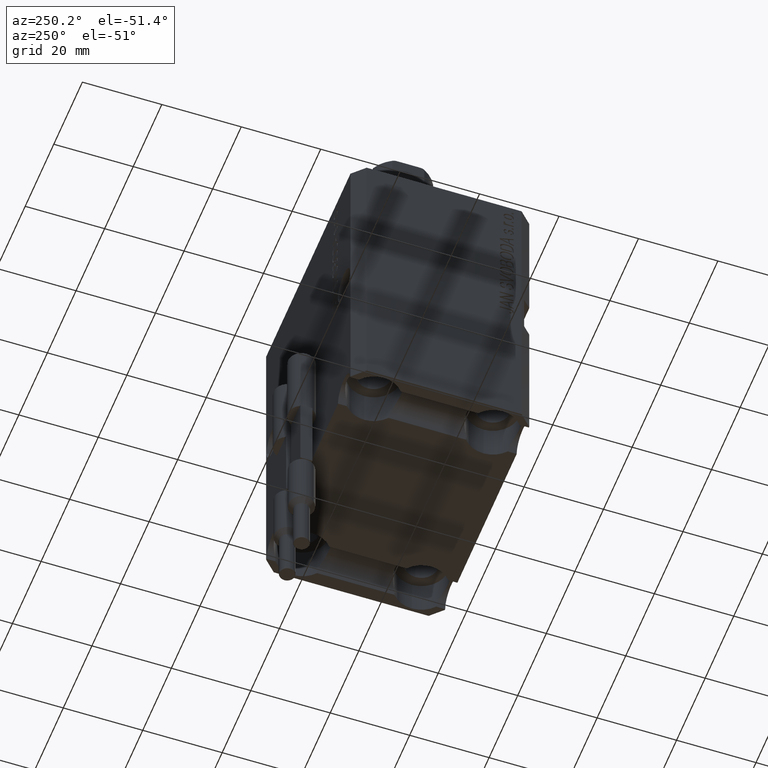
[diagram: clean part render]
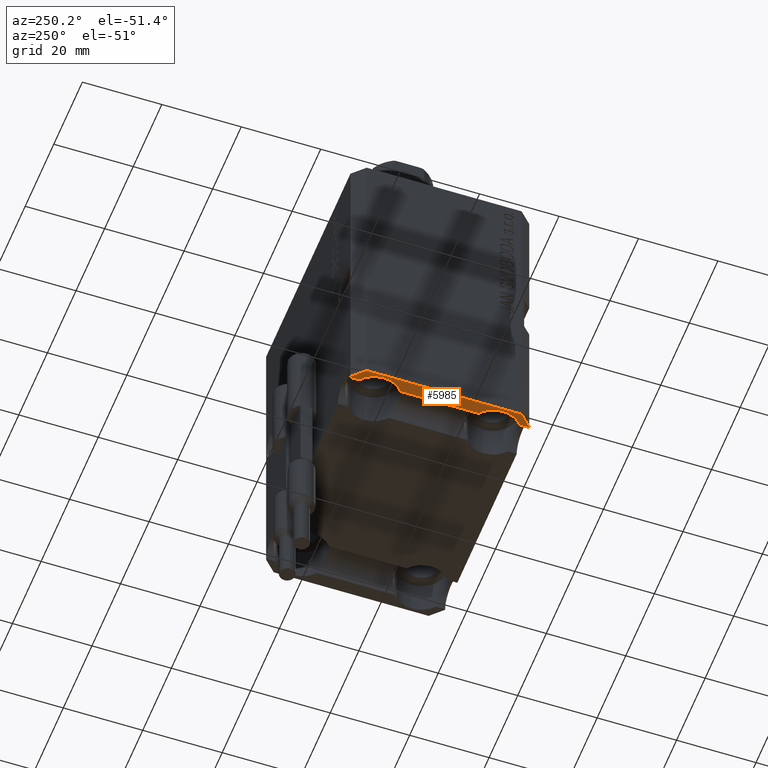
[diagram: same view with one face highlighted and labeled with its STEP entity id]
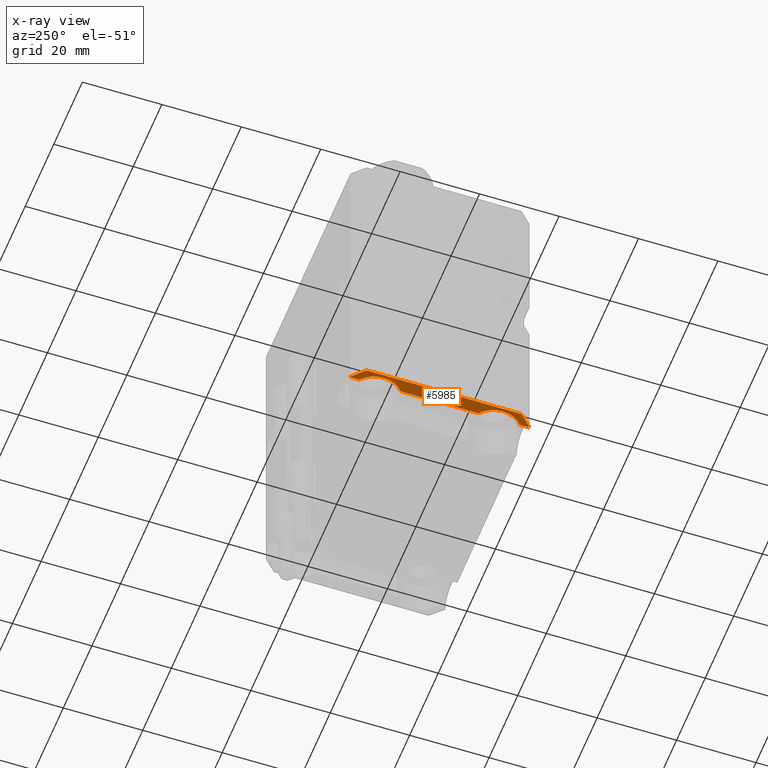
[diagram: x-ray of the same camera — body ghosted, the highlighted face saturated]
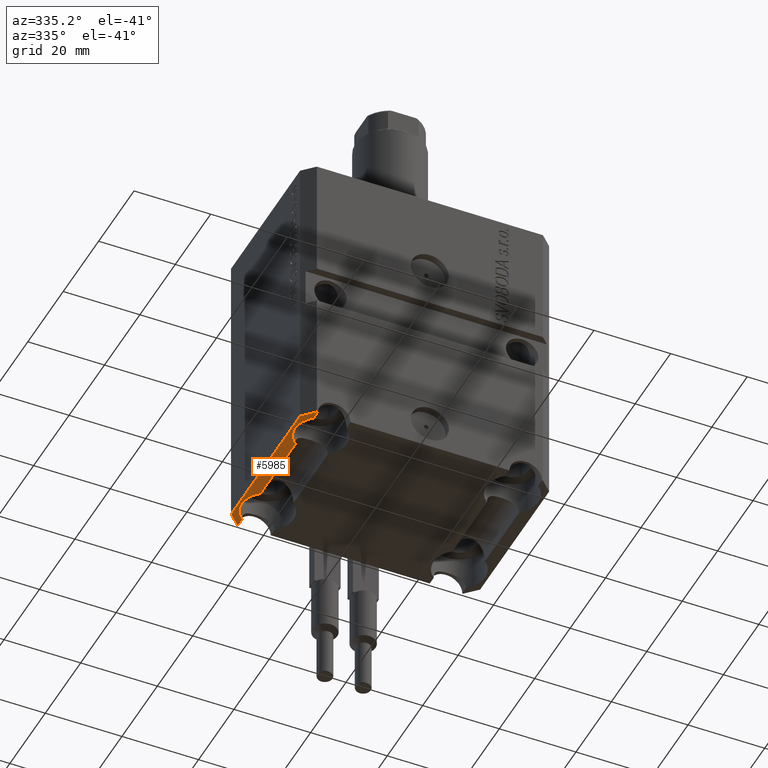
[diagram: same view with one face highlighted and labeled with its STEP entity id]
A machine part, auxiliary view. The second image highlights one B-rep face of the part: STEP entity #5985.
The next image is the same camera in x-ray: the body ghosted, the highlighted face saturated — about 0% of this face is hidden behind the body in this view.
A second angle (auxiliary view) of the same face is appended — the face is thin or edge-on in the first view.
In plain terms, the highlighted planar face has unit normal (0, 0, 1).
Its self-contained STEP definition (entity closure, byte-faithful):
#301 = CARTESIAN_POINT ( 'NONE',  ( -25.00000000000000355, -15.00000000000000000, -77.00000000000000000 ) ) ;
#1954 = ORIENTED_EDGE ( 'NONE', *, *, #21787, .T. ) ;
#2713 = VERTEX_POINT ( 'NONE', #23365 ) ;
#2900 = LINE ( 'NONE', #34544, #28093 ) ;
#3729 = DIRECTION ( 'NONE',  ( 1.000000000000000000, 0.000000000000000000, 0.000000000000000000 ) ) ;
#3853 = ORIENTED_EDGE ( 'NONE', *, *, #13255, .F. ) ;
#4079 = VECTOR ( 'NONE', #20288, 1000.000000000000000 ) ;
#4515 = VERTEX_POINT ( 'NONE', #29091 ) ;
#5629 = CIRCLE ( 'NONE', #31280, 6.750000000041541881 ) ;
#5823 = EDGE_CURVE ( 'NONE', #30228, #37947, #33822, .T. ) ;
#5873 = EDGE_CURVE ( 'NONE', #30228, #23498, #37714, .T. ) ;
#5985 = ADVANCED_FACE ( 'NONE', ( #28977 ), #21213, .F. ) ;
#6753 = CARTESIAN_POINT ( 'NONE',  ( 29.49999999999707967, 22.49999999999951328, -77.00000000000000000 ) ) ;
#6986 = DIRECTION ( 'NONE',  ( 1.000000000000000000, 0.000000000000000000, -0.000000000000000000 ) ) ;
#7473 = CARTESIAN_POINT ( 'NONE',  ( -29.24999999997660183, 20.24404424089872734, -77.00000000000000000 ) ) ;
#7662 = VERTEX_POINT ( 'NONE', #11352 ) ;
#8734 = LINE ( 'NONE', #26603, #18153 ) ;
#8962 = ORIENTED_EDGE ( 'NONE', *, *, #15445, .T. ) ;
#9704 = CARTESIAN_POINT ( 'NONE',  ( -32.49999999999650413, -19.49999999999949907, -77.00000000000000000 ) ) ;
#11352 = CARTESIAN_POINT ( 'NONE',  ( -29.24999999997659472, -20.24404424092320554, -77.00000000000000000 ) ) ;
#11401 = VERTEX_POINT ( 'NONE', #31441 ) ;
#12690 = CARTESIAN_POINT ( 'NONE',  ( -32.49999999999650413, 19.49999999999949907, -77.00000000000000000 ) ) ;
#12797 = VERTEX_POINT ( 'NONE', #31901 ) ;
#13255 = EDGE_CURVE ( 'NONE', #4515, #45220, #20274, .T. ) ;
#13607 = CARTESIAN_POINT ( 'NONE',  ( -29.24999999997659472, -9.755955759076794465, -77.00000000000000000 ) ) ;
#13705 = ORIENTED_EDGE ( 'NONE', *, *, #25559, .T. ) ;
#13820 = DIRECTION ( 'NONE',  ( -0.000000000000000000, -0.000000000000000000, 1.000000000000000000 ) ) ;
#14142 = DIRECTION ( 'NONE',  ( -0.000000000000000000, -0.000000000000000000, 1.000000000000000000 ) ) ;
#14277 = EDGE_CURVE ( 'NONE', #2713, #7662, #5629, .T. ) ;
#14281 = LINE ( 'NONE', #20945, #37190 ) ;
#14487 = AXIS2_PLACEMENT_3D ( 'NONE', #28806, #14142, #38909 ) ;
#14830 = DIRECTION ( 'NONE',  ( 1.176083712526788478E-16, -1.000000000000000000, -0.000000000000000000 ) ) ;
#15445 = EDGE_CURVE ( 'NONE', #7662, #12797, #2900, .T. ) ;
#15503 = LINE ( 'NONE', #25593, #23338 ) ;
#15898 = CARTESIAN_POINT ( 'NONE',  ( -25.00000000000000355, 15.00000000000000000, -77.00000000000000000 ) ) ;
#16721 = EDGE_CURVE ( 'NONE', #23498, #32721, #29575, .T. ) ;
#16848 = CARTESIAN_POINT ( 'NONE',  ( -29.24999999997659827, 22.49999999999952038, -77.00000000000000000 ) ) ;
#18153 = VECTOR ( 'NONE', #26833, 1000.000000000000114 ) ;
#18581 = ORIENTED_EDGE ( 'NONE', *, *, #30518, .F. ) ;
#19172 = ORIENTED_EDGE ( 'NONE', *, *, #14277, .T. ) ;
#19821 = LINE ( 'NONE', #12690, #42192 ) ;
#20206 = CIRCLE ( 'NONE', #34845, 6.750000000041541881 ) ;
#20274 = LINE ( 'NONE', #9704, #32005 ) ;
#20288 = DIRECTION ( 'NONE',  ( 1.176083712526788478E-16, -1.000000000000000000, -0.000000000000000000 ) ) ;
#20945 = CARTESIAN_POINT ( 'NONE',  ( -29.49999999999650413, -22.49999999999949907, -77.00000000000000000 ) ) ;
#21213 = PLANE ( 'NONE',  #42133 ) ;
#21653 = DIRECTION ( 'NONE',  ( 0.000000000000000000, 0.000000000000000000, 1.000000000000000000 ) ) ;
#21787 = EDGE_CURVE ( 'NONE', #34132, #2713, #20206, .T. ) ;
#22394 = EDGE_LOOP ( 'NONE', ( #31832, #40902, #36768, #13705, #29239, #1954, #19172, #8962, #30166, #3853, #25216, #18581 ) ) ;
#22869 = EDGE_CURVE ( 'NONE', #11401, #4515, #19821, .T. ) ;
#22983 = DIRECTION ( 'NONE',  ( 1.000000000000000000, 0.000000000000000000, 0.000000000000000000 ) ) ;
#23338 = VECTOR ( 'NONE', #14830, 1000.000000000000000 ) ;
#23365 = CARTESIAN_POINT ( 'NONE',  ( -31.75000000004154899, -15.00000000000000000, -77.00000000000000000 ) ) ;
#23498 = VERTEX_POINT ( 'NONE', #7473 ) ;
#24702 = CARTESIAN_POINT ( 'NONE',  ( -29.49999999999650413, -22.49999999999949907, -77.00000000000000000 ) ) ;
#25216 = ORIENTED_EDGE ( 'NONE', *, *, #22869, .F. ) ;
#25559 = EDGE_CURVE ( 'NONE', #32721, #28025, #44463, .T. ) ;
#25593 = CARTESIAN_POINT ( 'NONE',  ( -29.24999999997659827, 22.49999999999952038, -77.00000000000000000 ) ) ;
#26603 = CARTESIAN_POINT ( 'NONE',  ( -29.49999999999650413, 22.49999999999949907, -77.00000000000000000 ) ) ;
#26749 = DIRECTION ( 'NONE',  ( 1.000000000000000000, 0.000000000000000000, 0.000000000000000000 ) ) ;
#26833 = DIRECTION ( 'NONE',  ( -0.7071067811865474617, -0.7071067811865474617, 0.000000000000000000 ) ) ;
#26926 = DIRECTION ( 'NONE',  ( -1.000000000000000000, -2.352167425053553784E-16, 0.000000000000000000 ) ) ;
#28025 = VERTEX_POINT ( 'NONE', #28739 ) ;
#28093 = VECTOR ( 'NONE', #41403, 1000.000000000000000 ) ;
#28739 = CARTESIAN_POINT ( 'NONE',  ( -29.24999999997659472, 9.755955759101267333, -77.00000000000000000 ) ) ;
#28806 = CARTESIAN_POINT ( 'NONE',  ( -25.00000000000000355, 15.00000000000000000, -77.00000000000000000 ) ) ;
#28961 = EDGE_CURVE ( 'NONE', #28025, #34132, #15503, .T. ) ;
#28977 = FACE_OUTER_BOUND ( 'NONE', #22394, .T. ) ;
#29091 = CARTESIAN_POINT ( 'NONE',  ( -32.49999999999650413, -19.49999999999949907, -77.00000000000000000 ) ) ;
#29239 = ORIENTED_EDGE ( 'NONE', *, *, #28961, .T. ) ;
#29575 = CIRCLE ( 'NONE', #44924, 6.750000000022533087 ) ;
#29704 = VECTOR ( 'NONE', #26926, 1000.000000000000000 ) ;
#30166 = ORIENTED_EDGE ( 'NONE', *, *, #31210, .F. ) ;
#30228 = VERTEX_POINT ( 'NONE', #37444 ) ;
#30518 = EDGE_CURVE ( 'NONE', #37947, #11401, #8734, .T. ) ;
#31210 = EDGE_CURVE ( 'NONE', #45220, #12797, #14281, .T. ) ;
#31280 = AXIS2_PLACEMENT_3D ( 'NONE', #34728, #38630, #26749 ) ;
#31441 = CARTESIAN_POINT ( 'NONE',  ( -32.49999999999650413, 19.49999999999949907, -77.00000000000000000 ) ) ;
#31490 = DIRECTION ( 'NONE',  ( 1.000000000000000000, 1.176083712526788232E-16, 0.000000000000000000 ) ) ;
#31832 = ORIENTED_EDGE ( 'NONE', *, *, #5823, .F. ) ;
#31901 = CARTESIAN_POINT ( 'NONE',  ( -29.24999999997659472, -22.49999999999949907, -77.00000000000000000 ) ) ;
#32005 = VECTOR ( 'NONE', #44778, 1000.000000000000114 ) ;
#32721 = VERTEX_POINT ( 'NONE', #44056 ) ;
#33822 = LINE ( 'NONE', #6753, #29704 ) ;
#34132 = VERTEX_POINT ( 'NONE', #13607 ) ;
#34544 = CARTESIAN_POINT ( 'NONE',  ( -29.24999999997659827, 22.49999999999952038, -77.00000000000000000 ) ) ;
#34728 = CARTESIAN_POINT ( 'NONE',  ( -25.00000000000000355, -15.00000000000000000, -77.00000000000000000 ) ) ;
#34845 = AXIS2_PLACEMENT_3D ( 'NONE', #301, #13820, #3729 ) ;
#36768 = ORIENTED_EDGE ( 'NONE', *, *, #16721, .T. ) ;
#37190 = VECTOR ( 'NONE', #31490, 1000.000000000000000 ) ;
#37444 = CARTESIAN_POINT ( 'NONE',  ( -29.24999999997660183, 22.49999999999952038, -77.00000000000000000 ) ) ;
#37714 = LINE ( 'NONE', #16848, #4079 ) ;
#37947 = VERTEX_POINT ( 'NONE', #42799 ) ;
#38401 = CARTESIAN_POINT ( 'NONE',  ( 0.000000000000000000, 0.000000000000000000, -77.00000000000000000 ) ) ;
#38630 = DIRECTION ( 'NONE',  ( -0.000000000000000000, -0.000000000000000000, 1.000000000000000000 ) ) ;
#38909 = DIRECTION ( 'NONE',  ( 1.000000000000000000, 0.000000000000000000, 0.000000000000000000 ) ) ;
#40407 = DIRECTION ( 'NONE',  ( -0.000000000000000000, -0.000000000000000000, 1.000000000000000000 ) ) ;
#40902 = ORIENTED_EDGE ( 'NONE', *, *, #5873, .T. ) ;
#41403 = DIRECTION ( 'NONE',  ( 1.176083712526788478E-16, -1.000000000000000000, -0.000000000000000000 ) ) ;
#42133 = AXIS2_PLACEMENT_3D ( 'NONE', #38401, #21653, #6986 ) ;
#42192 = VECTOR ( 'NONE', #44087, 1000.000000000000000 ) ;
#42799 = CARTESIAN_POINT ( 'NONE',  ( -29.49999999999650413, 22.49999999999949907, -77.00000000000000000 ) ) ;
#44056 = CARTESIAN_POINT ( 'NONE',  ( -31.75000000002253842, 15.00000000000000000, -77.00000000000000000 ) ) ;
#44087 = DIRECTION ( 'NONE',  ( 0.000000000000000000, -1.000000000000000000, 0.000000000000000000 ) ) ;
#44463 = CIRCLE ( 'NONE', #14487, 6.750000000022533087 ) ;
#44778 = DIRECTION ( 'NONE',  ( 0.7071067811865474617, -0.7071067811865474617, 0.000000000000000000 ) ) ;
#44924 = AXIS2_PLACEMENT_3D ( 'NONE', #15898, #40407, #22983 ) ;
#45220 = VERTEX_POINT ( 'NONE', #24702 ) ;